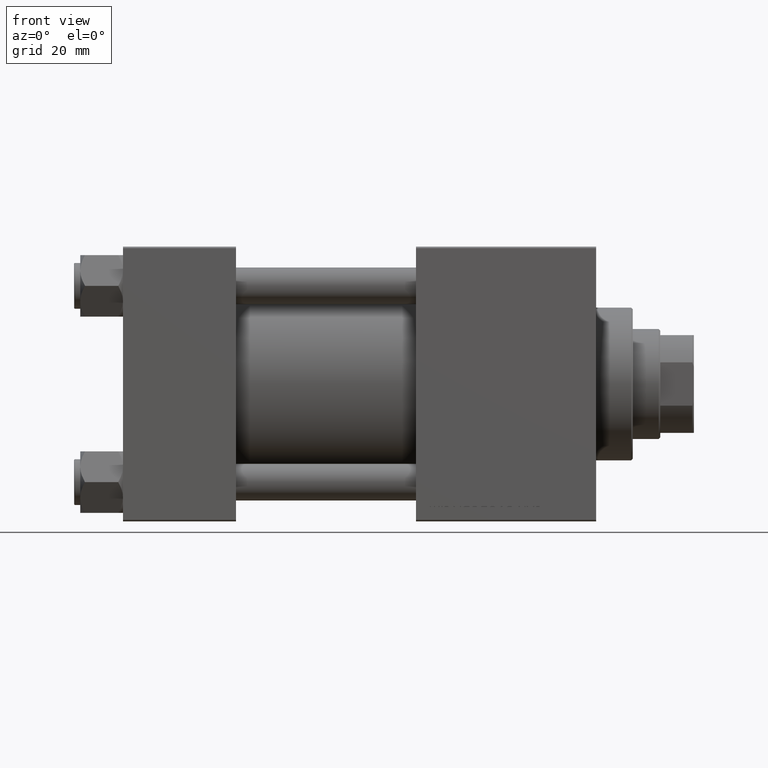
[diagram: clean part render]
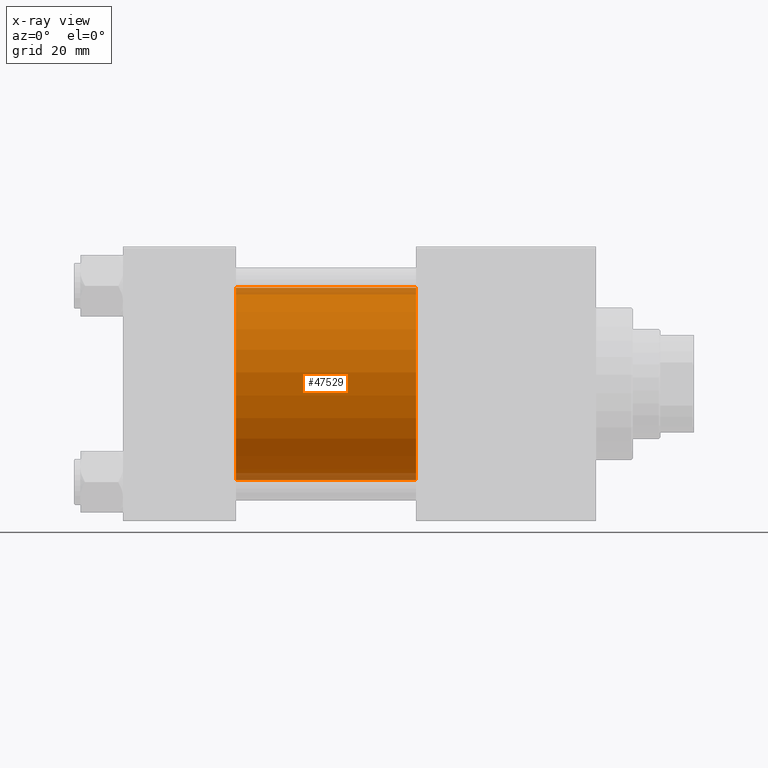
[diagram: x-ray — body ghosted, one internal face saturated and labeled with its STEP entity id]
A machine part, front view, then the same camera in x-ray: the body is ghosted and one INTERNAL B-rep face — a face not visible from any outside direction — is saturated and labeled: STEP entity #47529.
In plain terms, the highlighted cylindrical surface (partial cylindrical patch) has radius 31.5 mm, axis along (-1, -0, -0).
Its self-contained STEP definition (entity closure, byte-faithful):
#5248 = CARTESIAN_POINT ( 'NONE',  ( 96.00000000000000000, 1.255552203348951850E-15, -31.50000000000000000 ) ) ;
#5585 = EDGE_LOOP ( 'NONE', ( #18821, #9918, #23150, #24746 ) ) ;
#5802 = EDGE_CURVE ( 'NONE', #12123, #32026, #21229, .T. ) ;
#9918 = ORIENTED_EDGE ( 'NONE', *, *, #21761, .T. ) ;
#10600 = DIRECTION ( 'NONE',  ( -1.000000000000000000, -0.000000000000000000, -0.000000000000000000 ) ) ;
#11329 = VERTEX_POINT ( 'NONE', #27103 ) ;
#12123 = VERTEX_POINT ( 'NONE', #32004 ) ;
#12133 = CIRCLE ( 'NONE', #12933, 31.50000000000000000 ) ;
#12933 = AXIS2_PLACEMENT_3D ( 'NONE', #31995, #16271, #36303 ) ;
#15274 = DIRECTION ( 'NONE',  ( -1.000000000000000000, -0.000000000000000000, -0.000000000000000000 ) ) ;
#15519 = CARTESIAN_POINT ( 'NONE',  ( 96.00000000000000000, -2.602085213965210642E-15, 0.000000000000000000 ) ) ;
#16271 = DIRECTION ( 'NONE',  ( 1.000000000000000000, 0.000000000000000000, 0.000000000000000000 ) ) ;
#18821 = ORIENTED_EDGE ( 'NONE', *, *, #5802, .T. ) ;
#20506 = EDGE_CURVE ( 'NONE', #22329, #11329, #12133, .T. ) ;
#21229 = CIRCLE ( 'NONE', #35824, 31.50000000000000000 ) ;
#21761 = EDGE_CURVE ( 'NONE', #32026, #11329, #34713, .T. ) ;
#22329 = VERTEX_POINT ( 'NONE', #30462 ) ;
#23150 = ORIENTED_EDGE ( 'NONE', *, *, #20506, .F. ) ;
#24295 = AXIS2_PLACEMENT_3D ( 'NONE', #45227, #15274, #49538 ) ;
#24746 = ORIENTED_EDGE ( 'NONE', *, *, #45896, .F. ) ;
#26844 = CARTESIAN_POINT ( 'NONE',  ( 96.00000000000000000, 1.255552203348951850E-15, -31.50000000000000000 ) ) ;
#26949 = FACE_OUTER_BOUND ( 'NONE', #5585, .T. ) ;
#27103 = CARTESIAN_POINT ( 'NONE',  ( 37.00000000000000000, 1.255552203348951850E-15, -31.50000000000000000 ) ) ;
#30001 = CYLINDRICAL_SURFACE ( 'NONE', #24295, 31.50000000000000000 ) ;
#30462 = CARTESIAN_POINT ( 'NONE',  ( 37.00000000000000000, -2.602085213965210642E-15, 31.50000000000000000 ) ) ;
#31004 = DIRECTION ( 'NONE',  ( 0.000000000000000000, 0.000000000000000000, -1.000000000000000000 ) ) ;
#31995 = CARTESIAN_POINT ( 'NONE',  ( 37.00000000000000000, -2.602085213965210642E-15, 0.000000000000000000 ) ) ;
#32004 = CARTESIAN_POINT ( 'NONE',  ( 96.00000000000000000, -2.602085213965210642E-15, 31.50000000000000000 ) ) ;
#32026 = VERTEX_POINT ( 'NONE', #5248 ) ;
#32562 = LINE ( 'NONE', #40429, #47767 ) ;
#34713 = LINE ( 'NONE', #26844, #37287 ) ;
#35824 = AXIS2_PLACEMENT_3D ( 'NONE', #15519, #42167, #31004 ) ;
#36112 = DIRECTION ( 'NONE',  ( -1.000000000000000000, -0.000000000000000000, -0.000000000000000000 ) ) ;
#36303 = DIRECTION ( 'NONE',  ( 0.000000000000000000, 0.000000000000000000, -1.000000000000000000 ) ) ;
#37287 = VECTOR ( 'NONE', #10600, 1000.000000000000000 ) ;
#40429 = CARTESIAN_POINT ( 'NONE',  ( 96.00000000000000000, -2.602085213965210642E-15, 31.50000000000000000 ) ) ;
#42167 = DIRECTION ( 'NONE',  ( 1.000000000000000000, 0.000000000000000000, 0.000000000000000000 ) ) ;
#45227 = CARTESIAN_POINT ( 'NONE',  ( 96.00000000000000000, -2.602085213965210642E-15, 0.000000000000000000 ) ) ;
#45896 = EDGE_CURVE ( 'NONE', #12123, #22329, #32562, .T. ) ;
#47529 = ADVANCED_FACE ( 'NONE', ( #26949 ), #30001, .F. ) ;
#47767 = VECTOR ( 'NONE', #36112, 1000.000000000000000 ) ;
#49538 = DIRECTION ( 'NONE',  ( 0.000000000000000000, 0.000000000000000000, 1.000000000000000000 ) ) ;